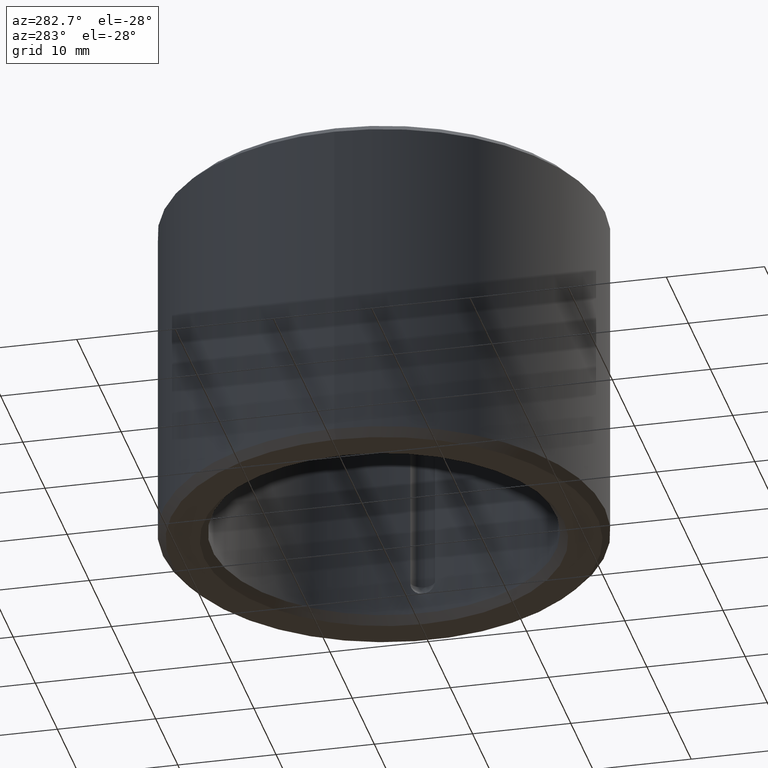
[diagram: clean part render]
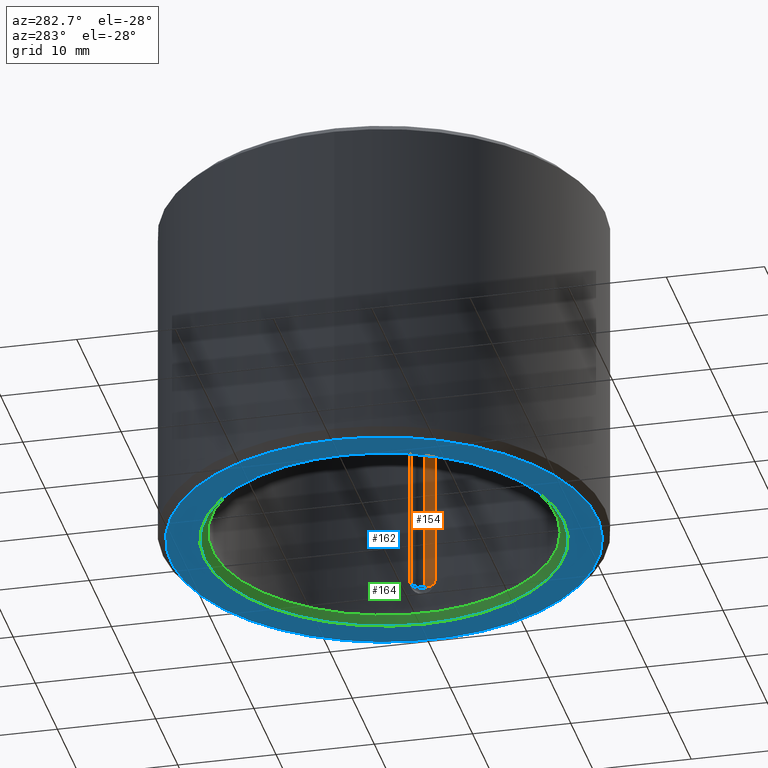
[diagram: same view with three faces highlighted in distinct colors, each labeled with its STEP entity id]
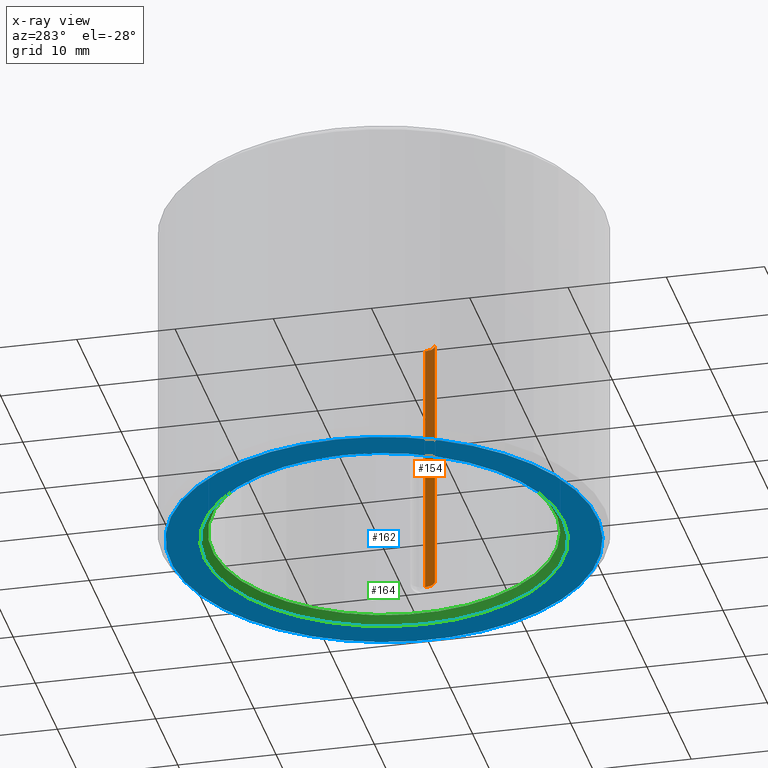
[diagram: x-ray of the same camera — body ghosted, the three highlighted faces saturated]
A machine part, auxiliary view with three faces highlighted in distinct colors.
The next image is the same camera in x-ray (body ghosted, the three faces saturated) — at least one of them is partly hidden behind the body in this view.
Their STEP definitions:

[orange] entity #154 — the highlighted cylindrical surface (edge-blend (fillet) strip) has radius 1.25 mm, axis along (-0, 0, -1).
#154=ADVANCED_FACE('',(#170),#171,.F.);
#170=FACE_OUTER_BOUND('',#206,.T.);
#171=CYLINDRICAL_SURFACE('',#207,0.00125);
#206=EDGE_LOOP('',(#6222,#6223,#6224,#6225));
#207=AXIS2_PLACEMENT_3D('',#6226,#6227,#6228);
#6222=ORIENTED_EDGE('',*,*,#6292,.T.);
#6223=ORIENTED_EDGE('',*,*,#6293,.F.);
#6224=ORIENTED_EDGE('',*,*,#6294,.F.);
#6225=ORIENTED_EDGE('',*,*,#6295,.F.);
#6226=CARTESIAN_POINT('',(-1.6974498424434E-005,-0.01725,7.96755491648367E-019));
#6227=DIRECTION('',(0.0,-6.12323399573677E-017,-1.0));
#6228=DIRECTION('',(0.0,1.0,-6.12323399573677E-017));
#6292=EDGE_CURVE('',#6316,#6317,#6318,.T.);
#6293=EDGE_CURVE('',#6319,#6317,#6320,.F.);
#6294=EDGE_CURVE('',#6321,#6319,#6322,.T.);
#6295=EDGE_CURVE('',#6316,#6321,#6323,.T.);
#6316=VERTEX_POINT('',#6354);
#6317=VERTEX_POINT('',#6355);
#6318=CIRCLE('',#6356,0.00125);
#6319=VERTEX_POINT('',#6357);
#6320=LINE('',#6358,#6359);
#6321=VERTEX_POINT('',#6360);
#6322=CIRCLE('',#6361,0.00125);
#6323=LINE('',#6362,#6363);
#6354=CARTESIAN_POINT('',(-0.00124999999999997,-0.0174553000547112,0.03075));
#6355=CARTESIAN_POINT('',(-1.69744984244436E-005,-0.0185,0.03075));
#6356=AXIS2_PLACEMENT_3D('',#6614,#6615,#6616);
#6357=CARTESIAN_POINT('',(-1.6974498424434E-005,-0.0185,0.00425));
#6358=CARTESIAN_POINT('',(-1.6974498424434E-005,-0.0185,0.03075));
#6359=VECTOR('',#6617,1.0);
#6360=CARTESIAN_POINT('',(-0.00124999999999997,-0.0174553000547112,0.00425));
#6361=AXIS2_PLACEMENT_3D('',#6618,#6619,#6620);
#6362=CARTESIAN_POINT('',(-0.00124999999999997,-0.0174553000547112,7.96755491648367E-019));
#6363=VECTOR('',#6621,1.0);
#6614=CARTESIAN_POINT('',(-1.69744984330893E-005,-0.01725,0.03075));
#6615=DIRECTION('',(-1.96963717561505E-014,0.0,1.0));
#6616=DIRECTION('',(1.0,0.0,1.96963717561505E-014));
#6617=DIRECTION('',(0.0,0.0,-1.0));
#6618=CARTESIAN_POINT('',(-1.69744984243317E-005,-0.01725,0.00425));
#6619=DIRECTION('',(0.0,0.0,1.0));
#6620=DIRECTION('',(1.0,0.0,0.0));
#6621=DIRECTION('',(0.0,-6.12323399573677E-017,-1.0));

[blue] entity #162 — the highlighted planar face has unit normal (-0, 0, -1).
#162=ADVANCED_FACE('',(#192,#193),#194,.T.);
#192=FACE_OUTER_BOUND('',#3216,.T.);
#193=FACE_BOUND('',#3217,.T.);
#194=PLANE('',#3218);
#3216=EDGE_LOOP('',(#6269));
#3217=EDGE_LOOP('',(#6270));
#3218=AXIS2_PLACEMENT_3D('',#6271,#6272,#6273);
#6269=ORIENTED_EDGE('',*,*,#6306,.T.);
#6270=ORIENTED_EDGE('',*,*,#6307,.F.);
#6271=CARTESIAN_POINT('',(0.0183,0.0,-1.24683249835833E-018));
#6272=DIRECTION('',(0.0,-6.12323399573677E-017,-1.0));
#6273=DIRECTION('',(0.0,1.0,-6.12323399573677E-017));
#6306=EDGE_CURVE('',#6340,#6340,#6341,.T.);
#6307=EDGE_CURVE('',#6342,#6342,#6343,.T.);
#6340=VERTEX_POINT('',#6602);
#6341=CIRCLE('',#6603,0.0217);
#6342=VERTEX_POINT('',#6604);
#6343=CIRCLE('',#6605,0.0183);
#6602=CARTESIAN_POINT('',(0.0,0.0217,-2.30452373231183E-018));
#6603=AXIS2_PLACEMENT_3D('',#6640,#6641,#6642);
#6604=CARTESIAN_POINT('',(0.0,0.0183,-2.63843486269954E-018));
#6605=AXIS2_PLACEMENT_3D('',#6643,#6644,#6645);
#6640=CARTESIAN_POINT('',(0.0,0.0,-9.75781955236954E-019));
#6641=DIRECTION('',(0.0,-6.12323399573677E-017,-1.0));
#6642=DIRECTION('',(0.0,1.0,-6.12323399573677E-017));
#6643=CARTESIAN_POINT('',(0.0,0.0,-1.51788304147971E-018));
#6644=DIRECTION('',(0.0,-6.12323399573677E-017,-1.0));
#6645=DIRECTION('',(0.0,1.0,-6.12323399573677E-017));

[green] entity #164 — the highlighted conical surface has half-angle 45 deg.
#164=ADVANCED_FACE('',(#198,#199),#200,.F.);
#198=FACE_OUTER_BOUND('',#3222,.T.);
#199=FACE_BOUND('',#3223,.T.);
#200=CONICAL_SURFACE('',#3224,0.0175,0.785398163397443);
#3222=EDGE_LOOP('',(#6279));
#3223=EDGE_LOOP('',(#6280));
#3224=AXIS2_PLACEMENT_3D('',#6281,#6282,#6283);
#6279=ORIENTED_EDGE('',*,*,#6307,.T.);
#6280=ORIENTED_EDGE('',*,*,#6299,.F.);
#6281=CARTESIAN_POINT('',(0.0,0.0,0.0008));
#6282=DIRECTION('',(0.0,-6.12323399573677E-017,-1.0));
#6283=DIRECTION('',(0.0,1.0,-6.12323399573677E-017));
#6299=EDGE_CURVE('',#6327,#6327,#6328,.T.);
#6307=EDGE_CURVE('',#6342,#6342,#6343,.T.);
#6327=VERTEX_POINT('',#6510);
#6328=CIRCLE('',#6511,0.0175);
#6342=VERTEX_POINT('',#6604);
#6343=CIRCLE('',#6605,0.0183);
#6510=CARTESIAN_POINT('',(0.0,0.0175,0.0008));
#6511=AXIS2_PLACEMENT_3D('',#6622,#6623,#6624);
#6604=CARTESIAN_POINT('',(0.0,0.0183,-2.63843486269954E-018));
#6605=AXIS2_PLACEMENT_3D('',#6643,#6644,#6645);
#6622=CARTESIAN_POINT('',(0.0,0.0,0.0008));
#6623=DIRECTION('',(0.0,-6.12323399573677E-017,-1.0));
#6624=DIRECTION('',(0.0,1.0,-6.12323399573677E-017));
#6643=CARTESIAN_POINT('',(0.0,0.0,-1.51788304147971E-018));
#6644=DIRECTION('',(0.0,-6.12323399573677E-017,-1.0));
#6645=DIRECTION('',(0.0,1.0,-6.12323399573677E-017));